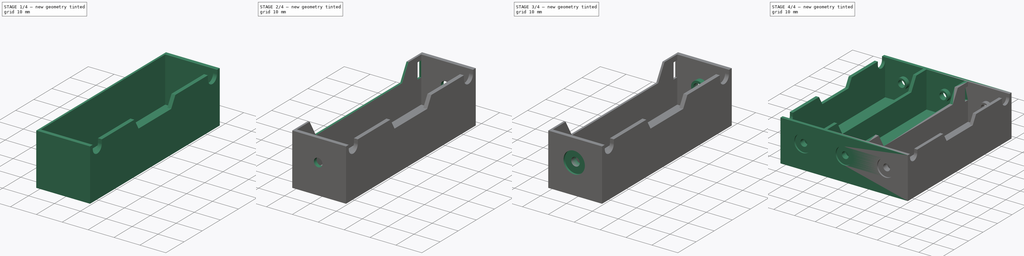
[diagram: build sequence overview — one tinted view per stage of 4, left to right]
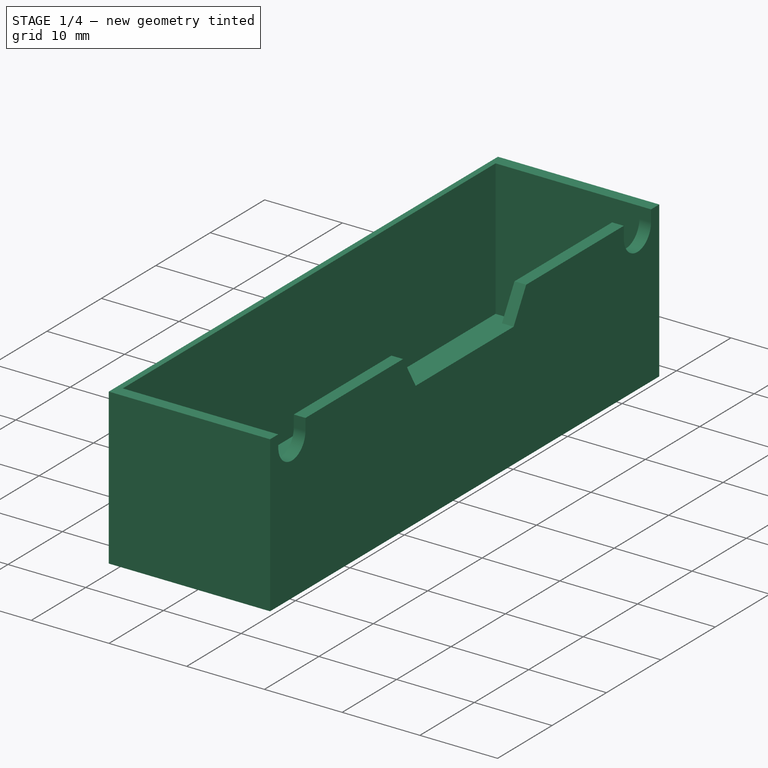
[diagram: stage 1 of 4 — iso view after this stage's code; geometry added in this stage tinted green]
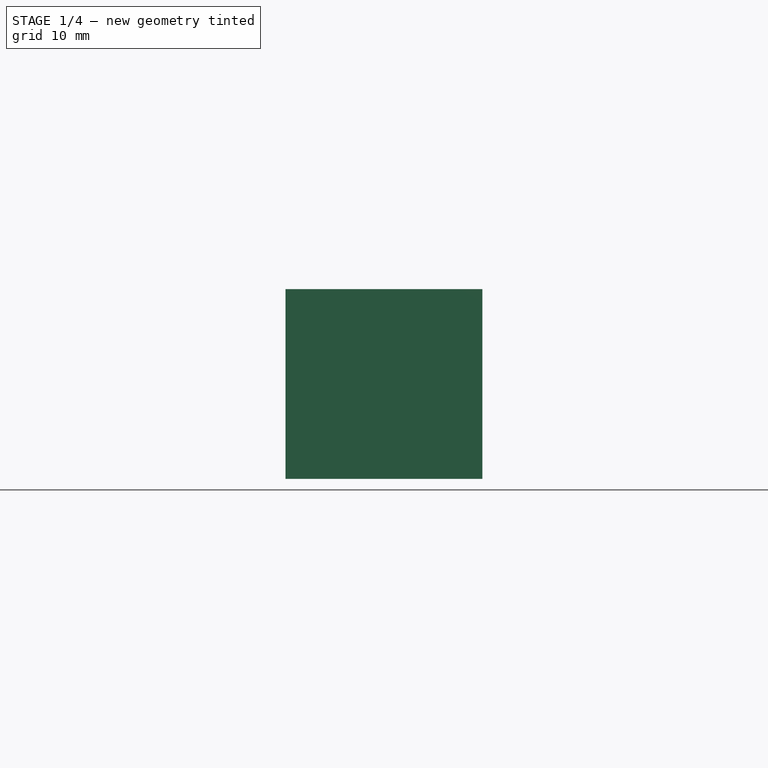
[diagram: stage 1 of 4 — front view after this stage's code; geometry added in this stage tinted green]
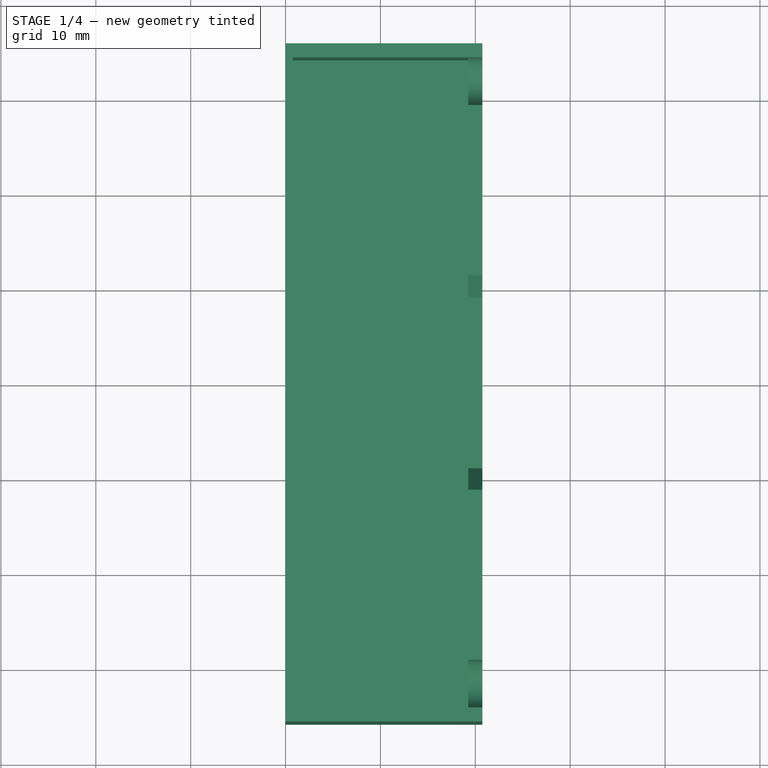
[diagram: stage 1 of 4 — top view after this stage's code; geometry added in this stage tinted green]
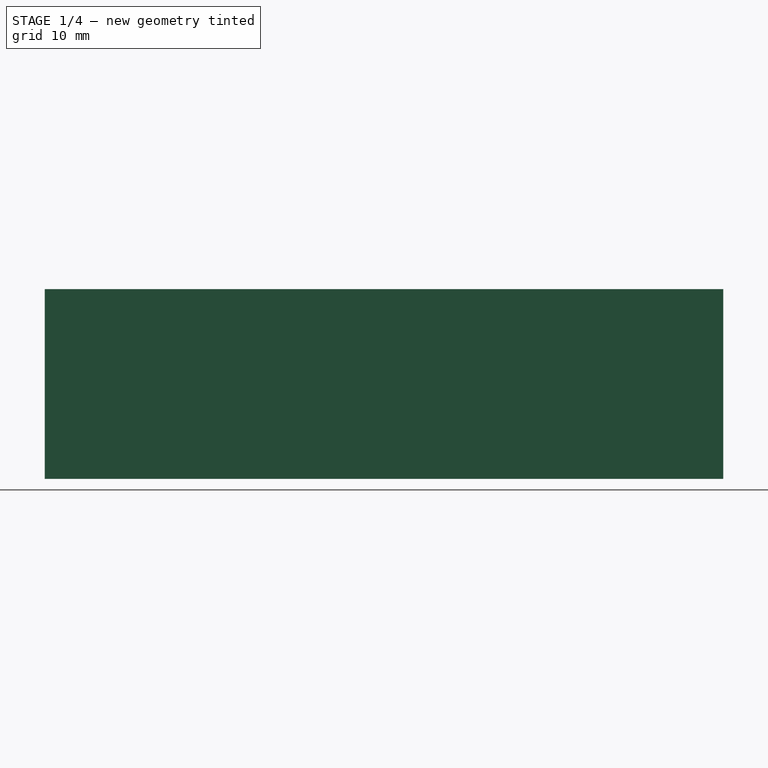
[diagram: stage 1 of 4 — right view after this stage's code; geometry added in this stage tinted green]
FCSTD DOCUMENT  (FreeCAD 1.0R39109 (Git))
Label: batteryholderx3
License: All rights reserved
LicenseURL: http://en.wikipedia.org/wiki/All_rights_reserved
objects: Sketcher::SketchObject×13, PartDesign::Pocket×8, PartDesign::Pad×3, PartDesign::Mirrored×2, PartDesign::Plane×1, PartDesign::Body×1
note: 65 computed .brp shape members not serialized (recipe doc carries the construction recipe); baked Part::Feature solids carry a one-line shape summary decoded from their .brp

FEATURE [Sketcher::SketchObject] Sketch
  ArcFitTolerance = 1e-06
  AttachmentSupport = -> [XY_Plane]
  FullyConstrained = true
  MakeInternals = false
  MapMode = 5
  sketch-geometry (4):
    g0: LineSegment StartX=0 StartY=35.75 StartZ=0 EndX=0 EndY=-35.75 EndZ=0
    g1: LineSegment StartX=0 StartY=-35.75 StartZ=0 EndX=20.75 EndY=-35.75 EndZ=0
    g2: LineSegment StartX=20.75 StartY=-35.75 StartZ=0 EndX=20.75 EndY=35.75 EndZ=0
    g3: LineSegment StartX=20.75 StartY=35.75 StartZ=0 EndX=0 EndY=35.75 EndZ=0
  constraints (11):
    c: Coincident(g0,g1)
    c: Coincident(g1,g2)
    c: Coincident(g2,g3)
    c: Coincident(g3,g0)
    c: Vertical(g0)
    c: Horizontal(g1)
    c: Horizontal(g3)
    c: PointOnObject(g0,g-2)
    c: DistanceY(g2,g2) = 71.5
    c: DistanceX(g3,g3) = 20.75
    c: Symmetric(g2,g1,g-1)
FEATURE [PartDesign::Pad] Pad  label="BaseBoxPad"
  Direction = (0,0,1)
  Length = 20
  Length2 = 10
  Profile = -> Sketch
  ReferenceAxis = -> Sketch [N_Axis]
  Refine = true
  Suppressed = false
  Type = 0
FEATURE [Sketcher::SketchObject] Sketch001
  ArcFitTolerance = 1e-06
  AttachmentSupport = -> [Pad]
  ExternalGeometry = -> [Pad]
  FullyConstrained = true
  MakeInternals = false
  MapMode = 5
  Placement = pos=(0,0,20) rot=(0,0,1;0rad)
  sketch-geometry (4):
    g0: LineSegment StartX=0.75 StartY=34.25 StartZ=0 EndX=0.75 EndY=-34.25 EndZ=0
    g1: LineSegment StartX=0.75 StartY=-34.25 StartZ=0 EndX=19.25 EndY=-34.25 EndZ=0
    g2: LineSegment StartX=19.25 StartY=-34.25 StartZ=0 EndX=19.25 EndY=34.25 EndZ=0
    g3: LineSegment StartX=19.25 StartY=34.25 StartZ=0 EndX=0.75 EndY=34.25 EndZ=0
  constraints (12):
    c: Coincident(g0,g1)
    c: Coincident(g1,g2)
    c: Coincident(g2,g3)
    c: Coincident(g3,g0)
    c: Vertical(g0)
    c: Horizontal(g1)
    c: Horizontal(g3)
    c: DistanceX(g0) = 0.75
    c: DistanceX(g1,g-3) = 1.5
    c: DistanceX(g1,g1) = 18.5
    c: DistanceY(g2,g-3) = 1.5
    c: Symmetric(g2,g1,g-1)
FEATURE [PartDesign::Pocket] Pocket  label="BatteryPocket"
  BaseFeature = -> Pad
  Direction = (0,0,-1)
  Length = 17.5
  Length2 = 5
  Profile = -> Sketch001
  ReferenceAxis = -> Sketch001 [N_Axis]
  Refine = true
  Suppressed = false
  Type = 0
FEATURE [Sketcher::SketchObject] Sketch002
  ArcFitTolerance = 1e-06
  AttachmentSupport = -> [Pocket]
  ExternalGeometry = -> [Pocket]
  FullyConstrained = false
  MakeInternals = false
  MapMode = 5
  Placement = pos=(20.75,0,0) rot=(0.57735,0.57735,0.57735;2.0944rad)
  sketch-geometry (14):
    g0: ArcOfCircle CenterX=-31.75 CenterY=18.5 CenterZ=0 NormalX=0 NormalY=0 NormalZ=1 AngleXU=0 Radius=2.5 StartAngle=3.14159 EndAngle=6.28319
    g1: LineSegment StartX=-34.25 StartY=18.5 StartZ=0 EndX=-34.25 EndY=20 EndZ=0
    g2: LineSegment StartX=-29.25 StartY=18.5 StartZ=0 EndX=-29.25 EndY=20 EndZ=0
    g3: LineSegment StartX=-11.3094 StartY=20 StartZ=0 EndX=-9 EndY=16 EndZ=0
    g4: LineSegment StartX=-9 StartY=16 StartZ=0 EndX=9 EndY=16 EndZ=0
    g5: LineSegment StartX=9 StartY=16 StartZ=0 EndX=11.3094 EndY=20 EndZ=0
    g6: LineSegment StartX=11.3094 StartY=20 StartZ=0 EndX=-11.3094 EndY=20 EndZ=0
    g7: LineSegment StartX=-29.25 StartY=20 StartZ=0 EndX=-34.25 EndY=20 EndZ=0
    g8: GeomPoint X=-31.75 Y=16 Z=0
    g9: ArcOfCircle CenterX=31.75 CenterY=18.5 CenterZ=0 NormalX=0 NormalY=0 NormalZ=1 AngleXU=0 Radius=2.5 StartAngle=3.14159 EndAngle=6.28319
    g10: LineSegment StartX=34.25 StartY=18.5 StartZ=0 EndX=34.25 EndY=20 EndZ=0
    g11: LineSegment StartX=29.25 StartY=18.5 StartZ=0 EndX=29.25 EndY=20 EndZ=0
    g12: LineSegment StartX=29.25 StartY=20 StartZ=0 EndX=34.25 EndY=20 EndZ=0
    g13: GeomPoint X=31.75 Y=16 Z=0
  constraints (29):
    c: Coincident(g1,g-5)
    c: PointOnObject(g2,g-3)
    c: Vertical(g2)
    c: PointOnObject(g3,g-3)
    c: Coincident(g4,g3)
    c: Coincident(g5,g4)
    c: Coincident(g6,g5)
    c: Coincident(g6,g3)
    c: Coincident(g7,g2)
    c: Coincident(g7,g1)
    c: DistanceX(g7,g7) = 5
    c: Vertical(g1)
    c: Tangent(g1,g0) = 1.5708
    c: Tangent(g2,g0) = -1.5708
    c: PointOnObject(g8,g0)
    c: Vertical(g8,g0)
    c: DistanceY(g8,g1) = 4
    c: Horizontal(g3,g8)
    c: Angle(g4,g3) = 2.0944
    c: Symmetric(g5,g3,g-2)
    c: Symmetric(g4,g3,g-2)
    c: DistanceX(g4,g4) = 18
    c: Vertical(g11)
    c: Coincident(g12,g11)
    c: Coincident(g12,g10)
    c: Vertical(g10)
    c: Tangent(g10,g9) = -1.5708
    c: Tangent(g11,g9) = 1.5708
    c: PointOnObject(g13,g9)
FEATURE [PartDesign::Pocket] Pocket001  label="ExternalPocket"
  BaseFeature = -> Pocket
  Direction = (-1,0,0)
  Length = 5
  Length2 = 5
  Profile = -> Sketch002
  ReferenceAxis = -> Sketch002 [N_Axis]
  Refine = true
  Suppressed = false
  Type = 2
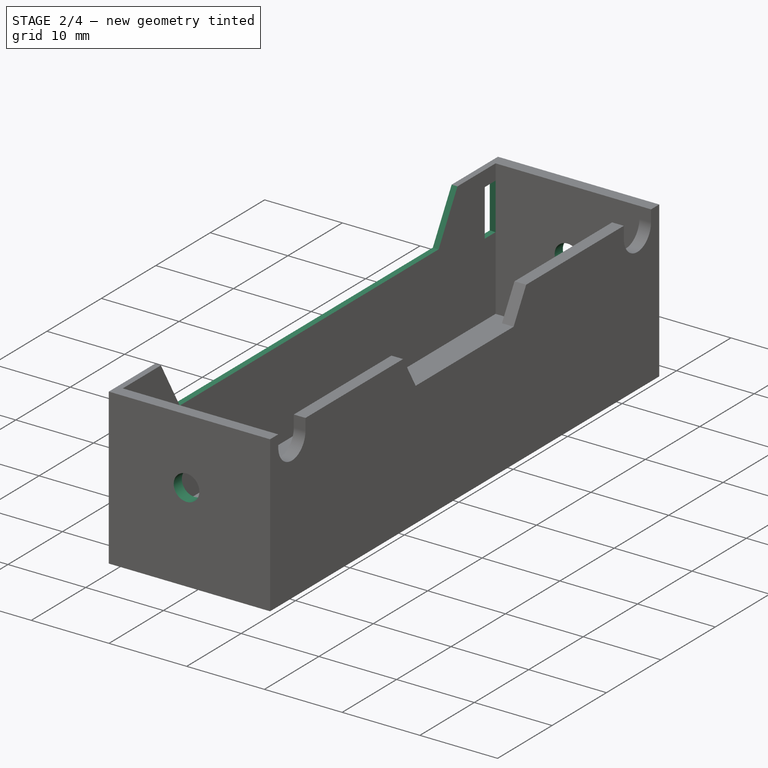
[diagram: stage 2 of 4 — iso view after this stage's code; geometry added in this stage tinted green]
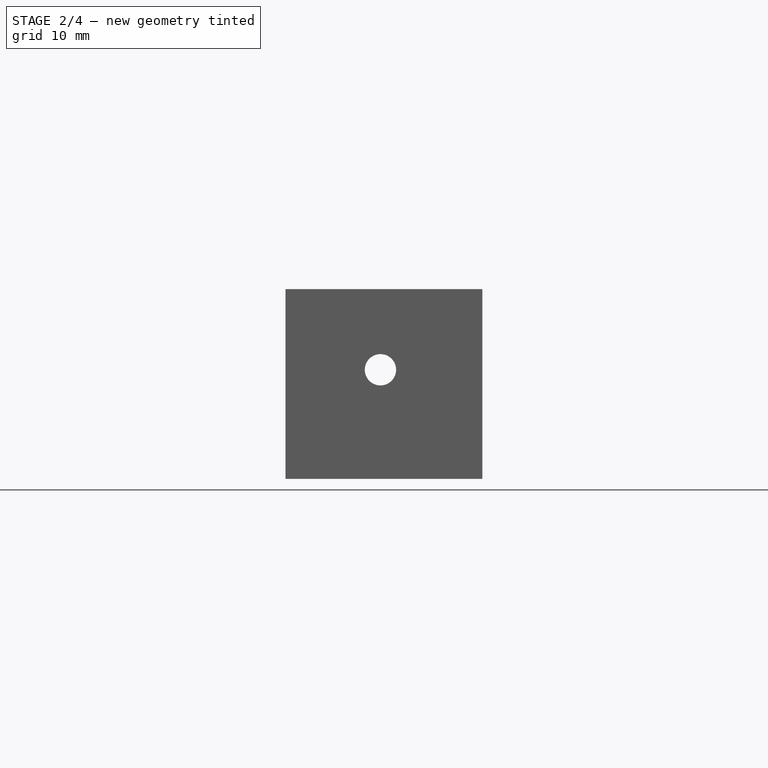
[diagram: stage 2 of 4 — front view after this stage's code; geometry added in this stage tinted green]
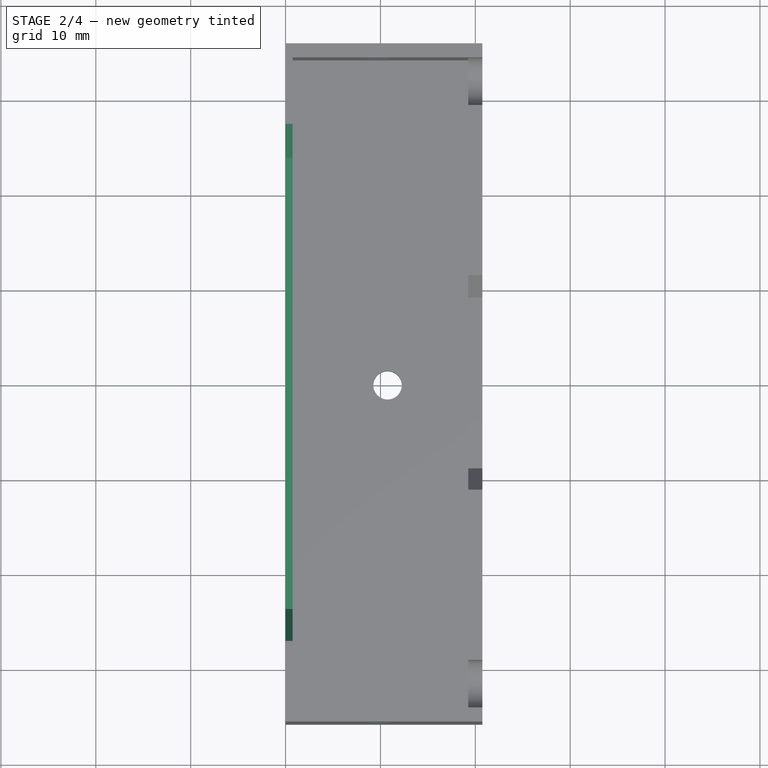
[diagram: stage 2 of 4 — top view after this stage's code; geometry added in this stage tinted green]
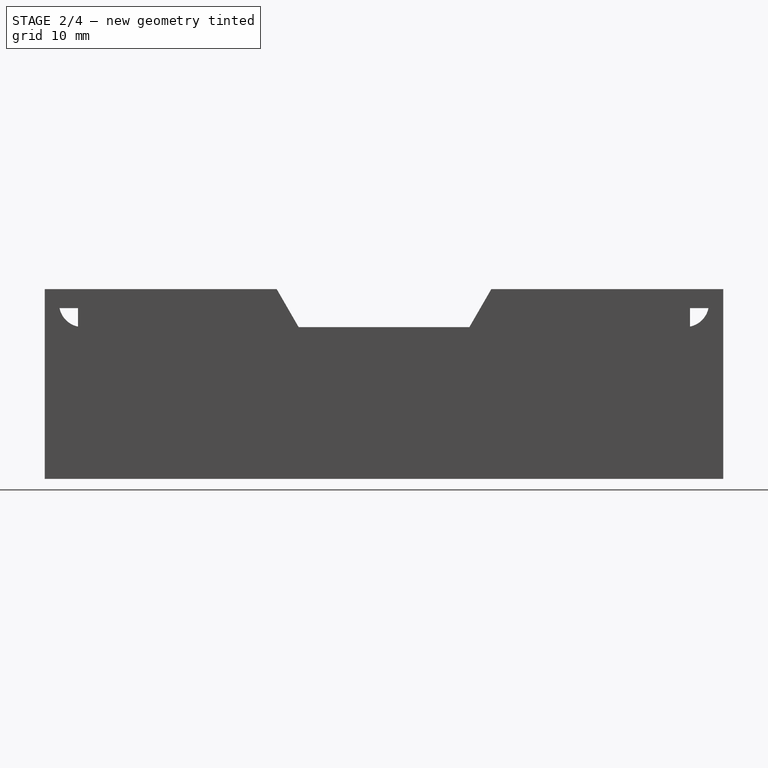
[diagram: stage 2 of 4 — right view after this stage's code; geometry added in this stage tinted green]
FEATURE [Sketcher::SketchObject] Sketch003
  ArcFitTolerance = 1e-06
  AttachmentSupport = -> [Pocket001]
  ExternalGeometry = -> [Pocket001]
  FullyConstrained = true
  MakeInternals = false
  MapMode = 5
  Placement = pos=(0.75,0,0) rot=(0.57735,0.57735,0.57735;2.0944rad)
  sketch-geometry (12):
    g0: LineSegment StartX=-27.25 StartY=20 StartZ=0 EndX=-23.7859 EndY=14 EndZ=0
    g1: LineSegment StartX=-23.7859 StartY=14 StartZ=0 EndX=23.7859 EndY=14 EndZ=0
    g2: LineSegment StartX=23.7859 StartY=14 StartZ=0 EndX=27.25 EndY=20 EndZ=0
    g3: LineSegment StartX=27.25 StartY=20 StartZ=0 EndX=-27.25 EndY=20 EndZ=0
    g4: LineSegment StartX=-34.25 StartY=18 StartZ=0 EndX=-34.25 EndY=12 EndZ=0
    g5: LineSegment StartX=-34.25 StartY=12 StartZ=0 EndX=-32.25 EndY=12 EndZ=0
    g6: LineSegment StartX=-32.25 StartY=12 StartZ=0 EndX=-32.25 EndY=18 EndZ=0
    g7: LineSegment StartX=-32.25 StartY=18 StartZ=0 EndX=-34.25 EndY=18 EndZ=0
    g8: LineSegment StartX=34.25 StartY=18 StartZ=0 EndX=32.25 EndY=18 EndZ=0
    g9: LineSegment StartX=32.25 StartY=18 StartZ=0 EndX=32.25 EndY=12 EndZ=0
    g10: LineSegment StartX=32.25 StartY=12 StartZ=0 EndX=34.25 EndY=12 EndZ=0
    g11: LineSegment StartX=34.25 StartY=12 StartZ=0 EndX=34.25 EndY=18 EndZ=0
  constraints (34):
    c: Coincident(g0,g1)
    c: Coincident(g1,g2)
    c: Coincident(g2,g3)
    c: Coincident(g3,g0)
    c: DistanceY(g-4,g1) = 11.5
    c: PointOnObject(g2,g-3)
    c: DistanceX(g2,g-3) = 7
    c: Angle(g2,g1) = 2.0944
    c: Symmetric(g0,g2,g-2)
    c: Symmetric(g0,g1,g-2)
    c: Coincident(g4,g5)
    c: Coincident(g5,g6)
    c: Coincident(g6,g7)
    c: Coincident(g7,g4)
    c: Vertical(g4)
    c: Vertical(g6)
    c: Horizontal(g5)
    c: Horizontal(g7)
    c: PointOnObject(g4,g-6)
    c: Coincident(g8,g9)
    c: Coincident(g9,g10)
    c: Coincident(g10,g11)
    c: Coincident(g11,g8)
    c: Horizontal(g8)
    c: Horizontal(g10)
    c: Vertical(g9)
    c: Vertical(g11)
    c: PointOnObject(g8,g-5)
    c: Horizontal(g5,g9)
    c: Horizontal(g8,g6)
    c: Equal(g7,g8)
    c: DistanceX(g8,g8) = 2
    c: DistanceY(g9,g9) = 6
    c: DistanceY(g8,g-5) = 2
FEATURE [PartDesign::Pocket] Pocket002  label="InternalPocket"
  BaseFeature = -> Pocket001
  Direction = (-1,0,0)
  Length = 5
  Length2 = 5
  Profile = -> Sketch003
  ReferenceAxis = -> Sketch003 [N_Axis]
  Refine = true
  Suppressed = false
  Type = 2
FEATURE [Sketcher::SketchObject] Sketch004
  ArcFitTolerance = 1e-06
  AttachmentSupport = -> [Pocket002]
  ExternalGeometry = -> [Pocket002]
  FullyConstrained = true
  MakeInternals = false
  MapMode = 5
  Placement = pos=(0,0,0) rot=(1,0,0;3.14159rad)
  sketch-geometry (1):
    g0: Circle CenterX=10.75 CenterY=0 CenterZ=0 NormalX=0 NormalY=0 NormalZ=1 AngleXU=0 Radius=1.5
  constraints (3):
    c: PointOnObject(g0,g-1)
    c: Radius(g0) = 1.5
    c: DistanceX(g0,g-3) = 10
FEATURE [PartDesign::Pocket] Pocket003  label="ScrewPocket"
  BaseFeature = -> Pocket002
  Direction = (0,0,1)
  Length = 5
  Length2 = 5
  Profile = -> Sketch004
  ReferenceAxis = -> Sketch004 [N_Axis]
  Refine = true
  Suppressed = false
  Type = 2
FEATURE [Sketcher::SketchObject] Sketch005
  ArcFitTolerance = 1e-06
  AttachmentSupport = -> [Pocket003]
  ExternalGeometry = -> [Pocket003]
  FullyConstrained = true
  MakeInternals = false
  MapMode = 5
  Placement = pos=(0,-35.75,0) rot=(1,0,0;1.5708rad)
  sketch-geometry (2):
    g0: Circle CenterX=10 CenterY=11.5 CenterZ=0 NormalX=0 NormalY=0 NormalZ=1 AngleXU=0 Radius=1.65
    g1: GeomPoint X=10 Y=2.5 Z=0
  constraints (4):
    c: Radius(g0) = 1.65
    c: DistanceY(g-3,g0) = 9
    c: Symmetric(g-3,g-3,g1)
    c: Vertical(g0,g1)
FEATURE [PartDesign::Pocket] Pocket004  label="ConnectionPocket"
  BaseFeature = -> Pocket003
  Direction = (0,1,-2e-16)
  Length = 5
  Length2 = 5
  Profile = -> Sketch005
  ReferenceAxis = -> Sketch005 [N_Axis]
  Refine = true
  Suppressed = false
  Type = 1
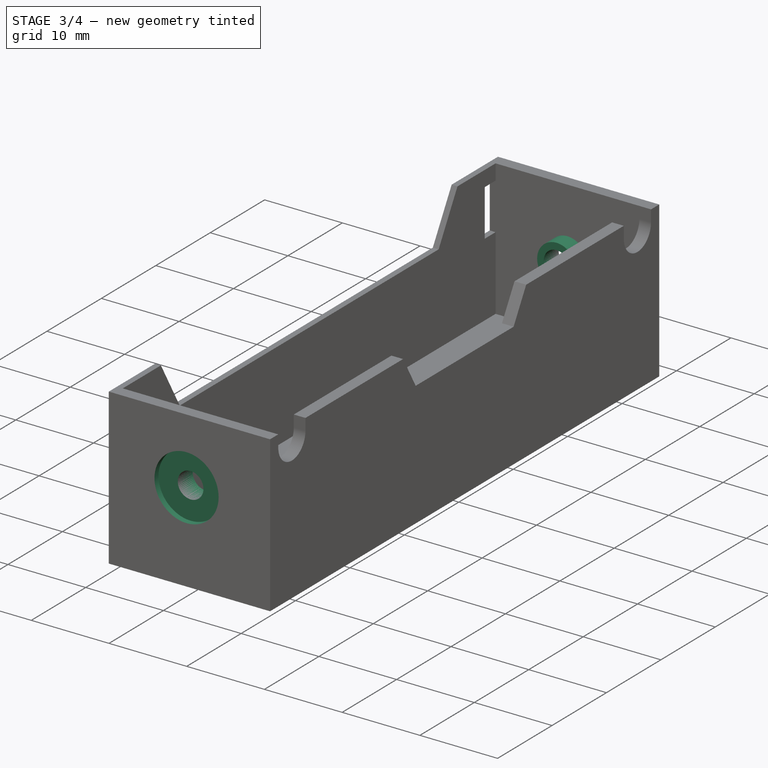
[diagram: stage 3 of 4 — iso view after this stage's code; geometry added in this stage tinted green]
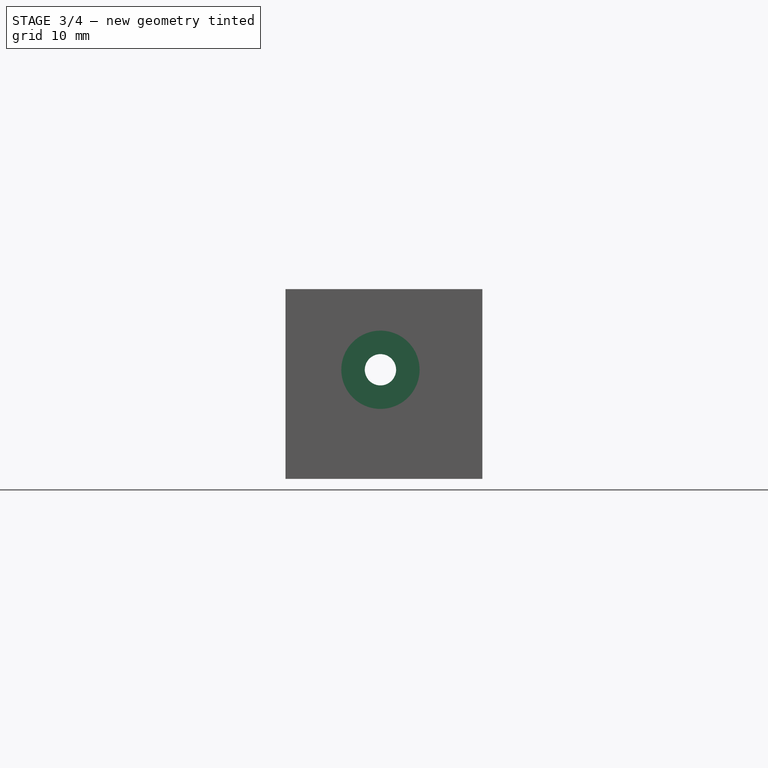
[diagram: stage 3 of 4 — front view after this stage's code; geometry added in this stage tinted green]
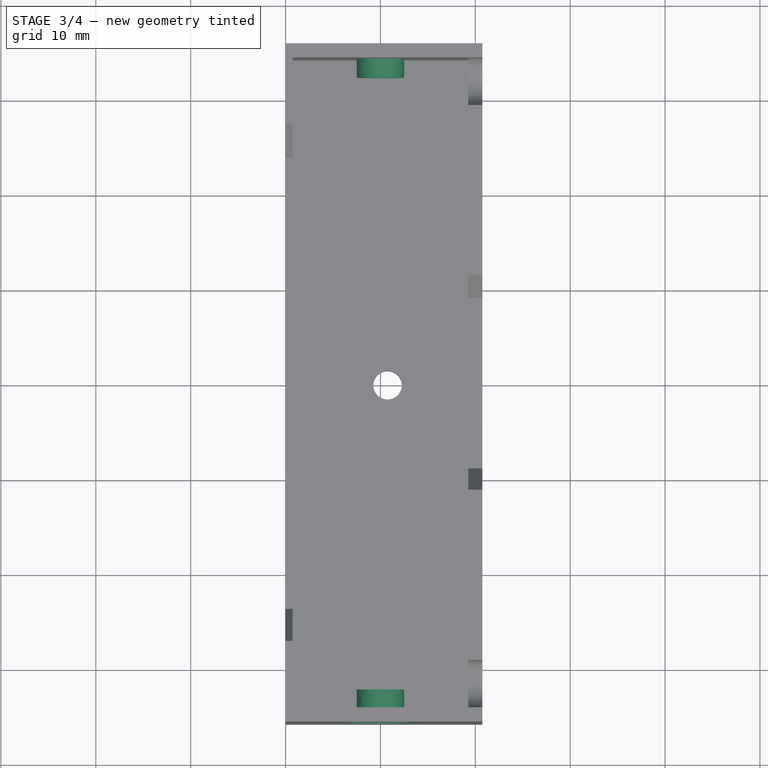
[diagram: stage 3 of 4 — top view after this stage's code; geometry added in this stage tinted green]
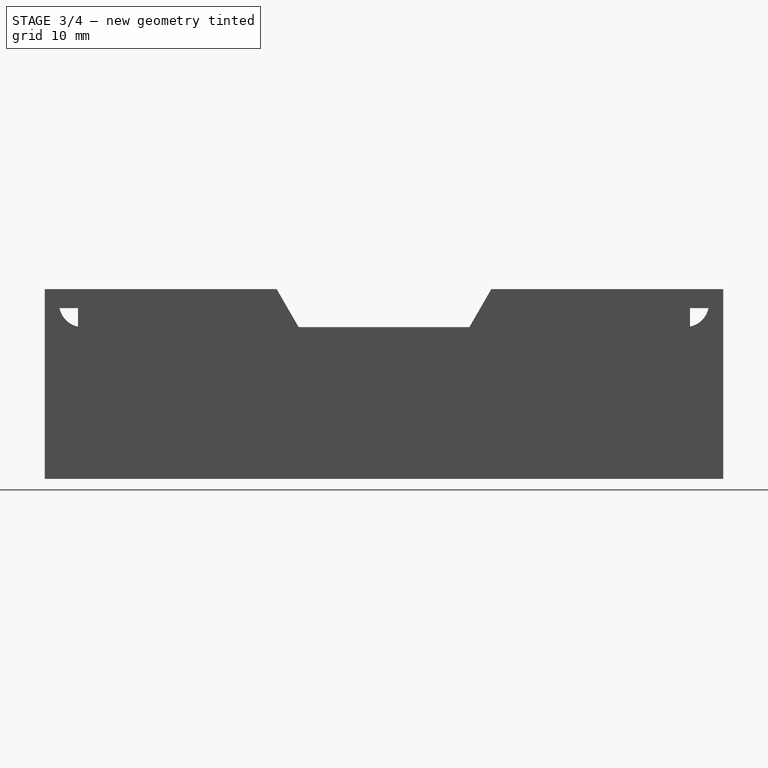
[diagram: stage 3 of 4 — right view after this stage's code; geometry added in this stage tinted green]
FEATURE [Sketcher::SketchObject] Sketch006
  ArcFitTolerance = 1e-06
  AttachmentSupport = -> [Pocket004]
  ExternalGeometry = -> [Pocket004]
  FullyConstrained = true
  MakeInternals = false
  MapMode = 5
  Placement = pos=(0,-35.75,0) rot=(1,0,0;1.5708rad)
  sketch-geometry (1):
    g0: Circle CenterX=10 CenterY=11.5 CenterZ=0 NormalX=0 NormalY=0 NormalZ=1 AngleXU=0 Radius=4.125
  constraints (2):
    c: Coincident(g0,g-3)
    c: Radius(g0) = 4.125
FEATURE [PartDesign::Pocket] Pocket005  label="Connection2Pocket"
  BaseFeature = -> Pocket004
  Direction = (0,1,-2e-16)
  Length = 0.75
  Length2 = 5
  Profile = -> Sketch006
  ReferenceAxis = -> Sketch006 [N_Axis]
  Refine = true
  Suppressed = false
  Type = 0
FEATURE [Sketcher::SketchObject] Sketch007
  ArcFitTolerance = 1e-06
  AttachmentSupport = -> [Pocket005]
  ExternalGeometry = -> [Pocket005]
  FullyConstrained = true
  MakeInternals = false
  MapMode = 5
  Placement = pos=(0,35.75,0) rot=(0,0.707107,0.707107;3.14159rad)
  sketch-geometry (1):
    g0: Circle CenterX=-10 CenterY=11.5 CenterZ=0 NormalX=0 NormalY=0 NormalZ=1 AngleXU=0 Radius=4.125
  constraints (2):
    c: Coincident(g0,g-3)
    c: Equal(g0,g-3)
FEATURE [PartDesign::Pocket] Pocket006  label="Connection3Pocktet"
  BaseFeature = -> Pocket005
  Direction = (0,-1,2e-16)
  Length = 0.75
  Length2 = 5
  Profile = -> Sketch007
  ReferenceAxis = -> Sketch007 [N_Axis]
  Refine = true
  Suppressed = false
  Type = 0
FEATURE [Sketcher::SketchObject] Sketch008
  ArcFitTolerance = 1e-06
  AttachmentSupport = -> [Pocket006]
  ExternalGeometry = -> [Pocket006]
  FullyConstrained = true
  MakeInternals = false
  MapMode = 5
  Placement = pos=(0,34.25,0) rot=(1,0,0;1.5708rad)
  sketch-geometry (2):
    g0: Circle CenterX=10 CenterY=11.5 CenterZ=0 NormalX=0 NormalY=0 NormalZ=1 AngleXU=0 Radius=2.5
    g1: Circle CenterX=10 CenterY=11.5 CenterZ=0 NormalX=0 NormalY=0 NormalZ=1 AngleXU=0 Radius=1.65
  constraints (4):
    c: Coincident(g0,g-3)
    c: Coincident(g1,g0)
    c: Equal(g-3,g1)
    c: Radius(g0) = 2.5
FEATURE [PartDesign::Pad] Pad001  label="ConnectionPad"
  BaseFeature = -> Pocket006
  Direction = (0,-1,2e-16)
  Length = 2
  Length2 = 10
  Profile = -> Sketch008
  ReferenceAxis = -> Sketch008 [N_Axis]
  Refine = true
  Suppressed = false
  Type = 0
FEATURE [Sketcher::SketchObject] Sketch009
  ArcFitTolerance = 1e-06
  AttachmentSupport = -> [Pad001]
  ExternalGeometry = -> [Pad001]
  FullyConstrained = true
  MakeInternals = false
  MapMode = 5
  Placement = pos=(0,-34.25,0) rot=(0,0.707107,0.707107;3.14159rad)
  sketch-geometry (2):
    g0: Circle CenterX=-10 CenterY=11.5 CenterZ=0 NormalX=0 NormalY=0 NormalZ=1 AngleXU=0 Radius=2.5
    g1: Circle CenterX=-10 CenterY=11.5 CenterZ=0 NormalX=0 NormalY=0 NormalZ=1 AngleXU=0 Radius=1.65
  constraints (4):
    c: Coincident(g0,g-4)
    c: Coincident(g1,g0)
    c: Equal(g1,g-4)
    c: Equal(g-3,g0)
FEATURE [PartDesign::Pad] Pad002  label="Connection2Pad"
  BaseFeature = -> Pad001
  Direction = (0,1,-2e-16)
  Length = 2
  Length2 = 10
  Profile = -> Sketch009
  ReferenceAxis = -> Sketch009 [N_Axis]
  Refine = true
  Suppressed = false
  Type = 0
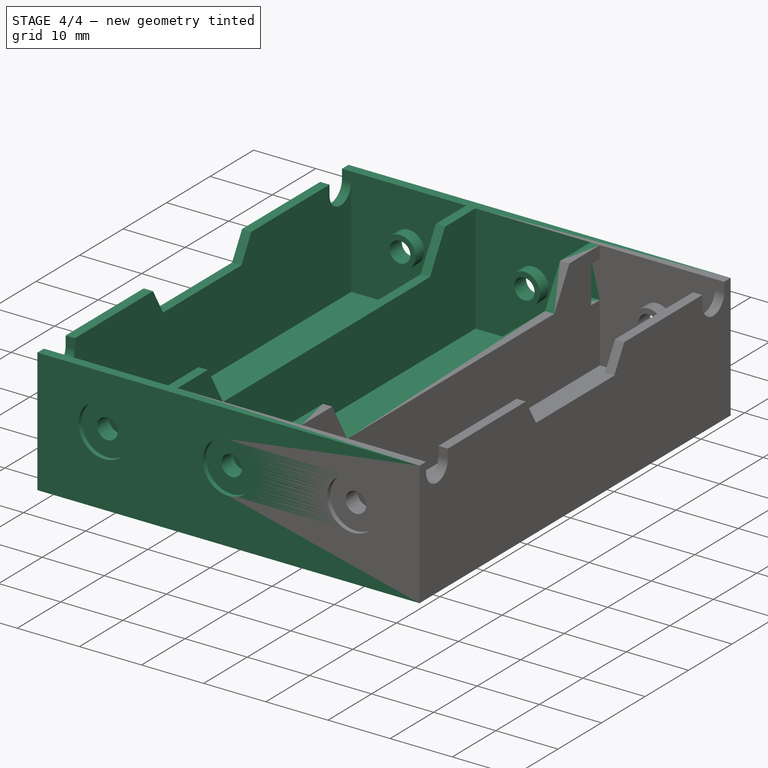
[diagram: stage 4 of 4 — iso view after this stage's code; geometry added in this stage tinted green]
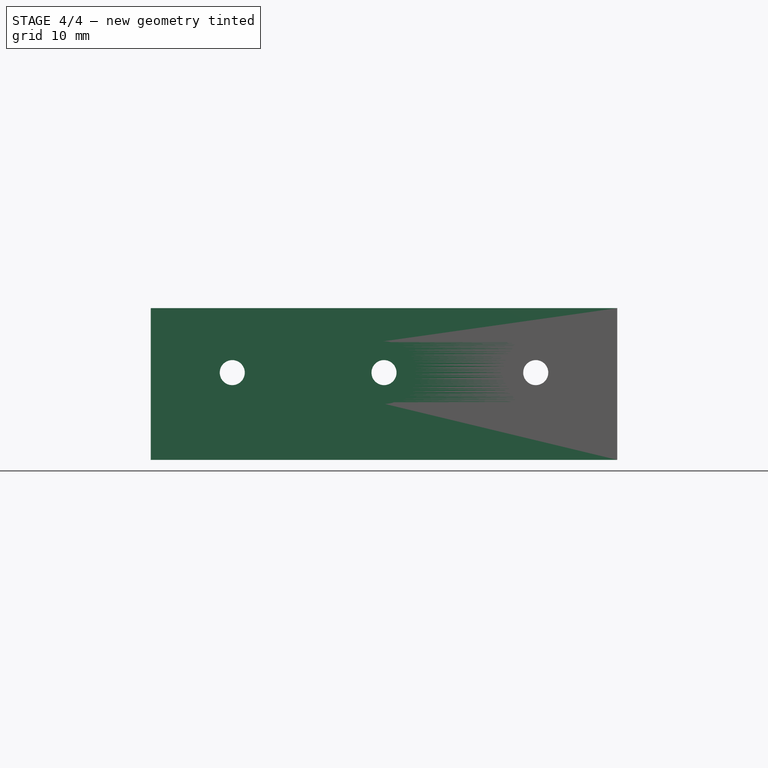
[diagram: stage 4 of 4 — front view after this stage's code; geometry added in this stage tinted green]
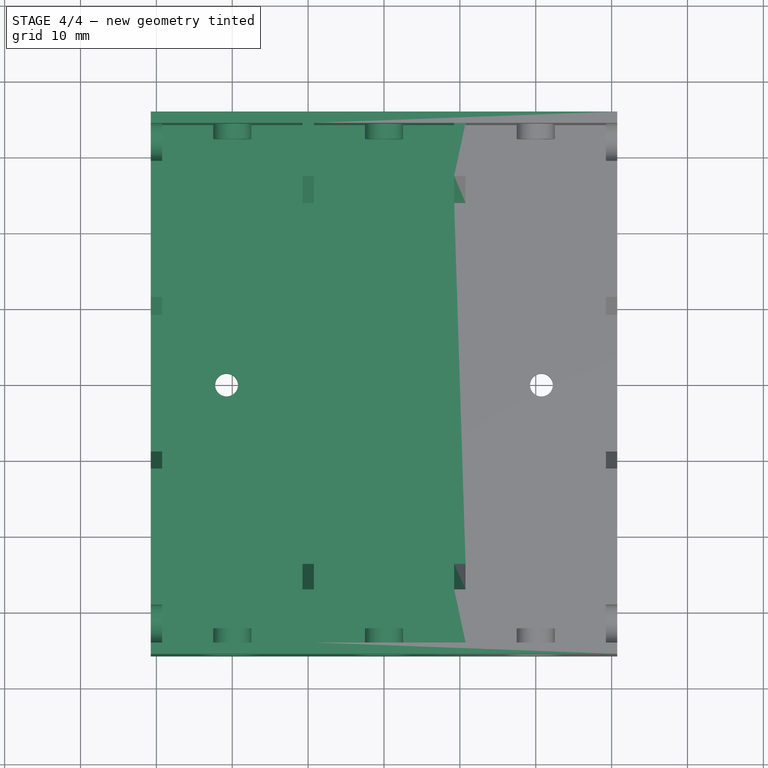
[diagram: stage 4 of 4 — top view after this stage's code; geometry added in this stage tinted green]
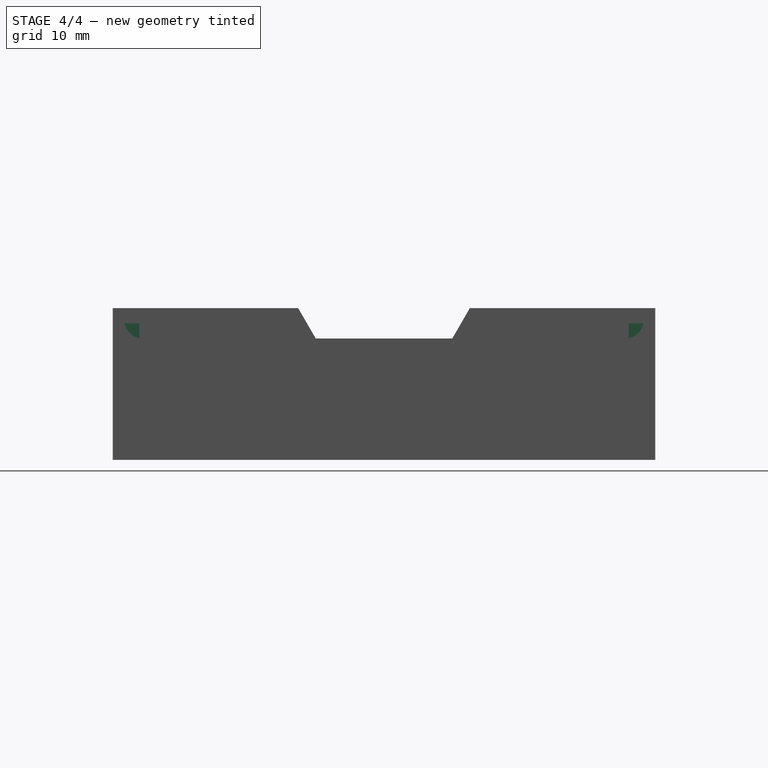
[diagram: stage 4 of 4 — right view after this stage's code; geometry added in this stage tinted green]
FEATURE [PartDesign::Mirrored] Mirrored  label="MirrorForMiddle"
  BaseFeature = -> Pad002
  MirrorPlane = -> Sketch [V_Axis]
  Originals = -> [Pad,Pocket,Pocket002,Pocket004,Pocket005,Pocket006,Pad001,Pad002]
  Refine = true
  Suppressed = false
  TransformMode = 0
FEATURE [Sketcher::SketchObject] Sketch010
  ArcFitTolerance = 1e-06
  AttachmentSupport = -> [Mirrored]
  ExternalGeometry = -> [Mirrored]
  FullyConstrained = true
  MakeInternals = false
  MapMode = 5
  Placement = pos=(0,0,20) rot=(0,0,1;0rad)
  sketch-geometry (3):
    g0: LineSegment StartX=-19.25 StartY=-34.25 StartZ=0 EndX=-0.75 EndY=-34.25 EndZ=0
    g1: GeomPoint X=-10 Y=-34.25 Z=0
    g2: LineSegment StartX=-10 StartY=-34.25 StartZ=0 EndX=-10 EndY=0 EndZ=0
  constraints (6):
    c: Coincident(g0,g-4)
    c: Coincident(g0,g-4)
    c: Symmetric(g0,g0,g1)
    c: Coincident(g2,g1)
    c: PointOnObject(g2,g-1)
    c: Vertical(g2)
FEATURE [PartDesign::Plane] DatumPlane  label="AdditionalSimmetry"
  AttachmentOffset = pos=(0,0,-10) rot=(0,0,1;0rad)
  AttachmentSupport = -> [YZ_Plane]
  Length = 83.4583
  MapMode = 5
  Placement = pos=(-10,0,0) rot=(0.57735,0.57735,0.57735;2.0944rad)
  ResizeMode = 0
  Width = 61.9583
FEATURE [PartDesign::Mirrored] Mirrored001  label="MirrorForThird"
  BaseFeature = -> Mirrored
  MirrorPlane = -> DatumPlane
  Originals = -> [Pad,Pocket,Pocket001,Pocket002,Pocket003,Pocket004,Pocket005,Pocket006,Pad001,Pad002]
  Refine = true
  Suppressed = false
  TransformMode = 0
FEATURE [Sketcher::SketchObject] Sketch011
  ArcFitTolerance = 1e-06
  AttachmentSupport = -> [Mirrored001]
  ExternalGeometry = -> [Mirrored001]
  FullyConstrained = true
  MakeInternals = false
  MapMode = 5
  Placement = pos=(-20,0,0) rot=(0.57735,-0.57735,-0.57735;2.0944rad)
  sketch-geometry (4):
    g0: LineSegment StartX=-27.25 StartY=20 StartZ=0 EndX=-23.7859 EndY=14 EndZ=0
    g1: LineSegment StartX=-23.7859 StartY=14 StartZ=0 EndX=23.7859 EndY=14 EndZ=0
    g2: LineSegment StartX=23.7859 StartY=14 StartZ=0 EndX=27.25 EndY=20 EndZ=0
    g3: LineSegment StartX=27.25 StartY=20 StartZ=0 EndX=-27.25 EndY=20 EndZ=0
  constraints (8):
    c: Coincident(g-4,g0)
    c: Coincident(g0,g-4)
    c: Coincident(g0,g1)
    c: Coincident(g1,g-5)
    c: Coincident(g1,g2)
    c: Coincident(g2,g-5)
    c: Coincident(g2,g3)
    c: Coincident(g3,g0)
FEATURE [PartDesign::Pocket] Pocket007  label="FinalDetailPocket"
  BaseFeature = -> Mirrored001
  Direction = (1,0,0)
  Length = 5
  Length2 = 5
  Profile = -> Sketch011
  ReferenceAxis = -> Sketch011 [N_Axis]
  Refine = true
  Suppressed = false
  Type = 2
FEATURE [Sketcher::SketchObject] Sketch012  label="SizeRef"
  ArcFitTolerance = 1e-06
  AttachmentSupport = -> [XY_Plane]
  ExternalGeometry = -> [Pocket007]
  FullyConstrained = true
  MakeInternals = false
  MapMode = 5
  constraints (4):
    c: DistanceY(g-6,g-5) = 71.5
    c: DistanceX(g-5,g-5) = 61.5
    c: DistanceY(g-3,g-5) = 35.75
    c: DistanceX(g-3,g-5) = 10
FEATURE [PartDesign::Body] Body  label="BatteryHolderx3"
  AllowCompound = false
  Group = -> [Sketch,Pad,Sketch001,Pocket,Sketch002,Pocket001,Sketch003,Pocket002,Sketch004,Pocket003,Sketch005,Pocket004,Sketch006,Pocket005,Sketch007,Pocket006,Sketch008,Pad001,Sketch009,Pad002,Mirrored,Sketch010,DatumPlane,Mirrored001,Sketch011,Pocket007,Sketch012]
  Origin = -> Origin
  Tip = -> Pocket007
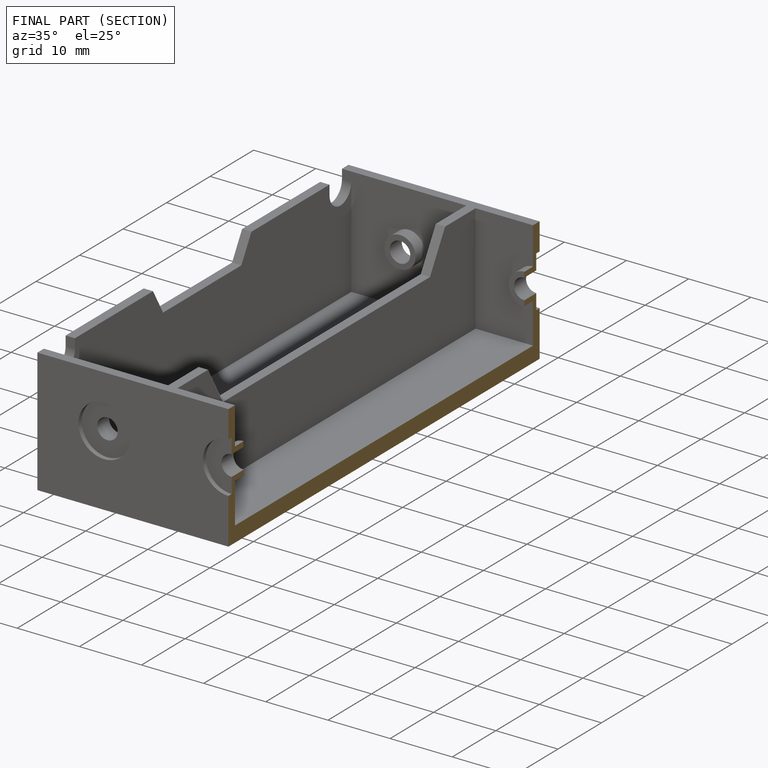
[diagram: finished part — half-section view (interior)]
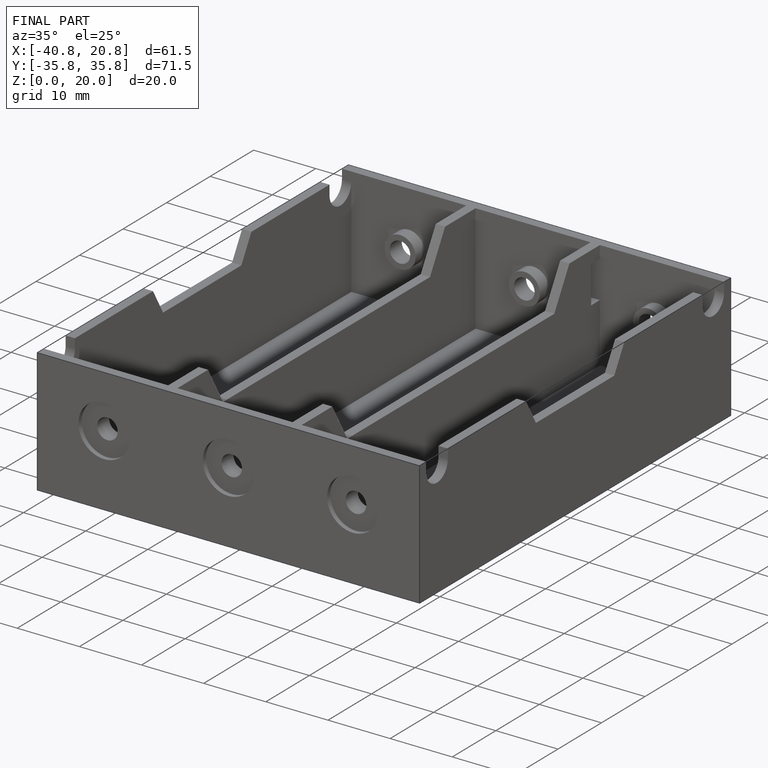
[diagram: finished part — iso view with bounding-box wireframe]
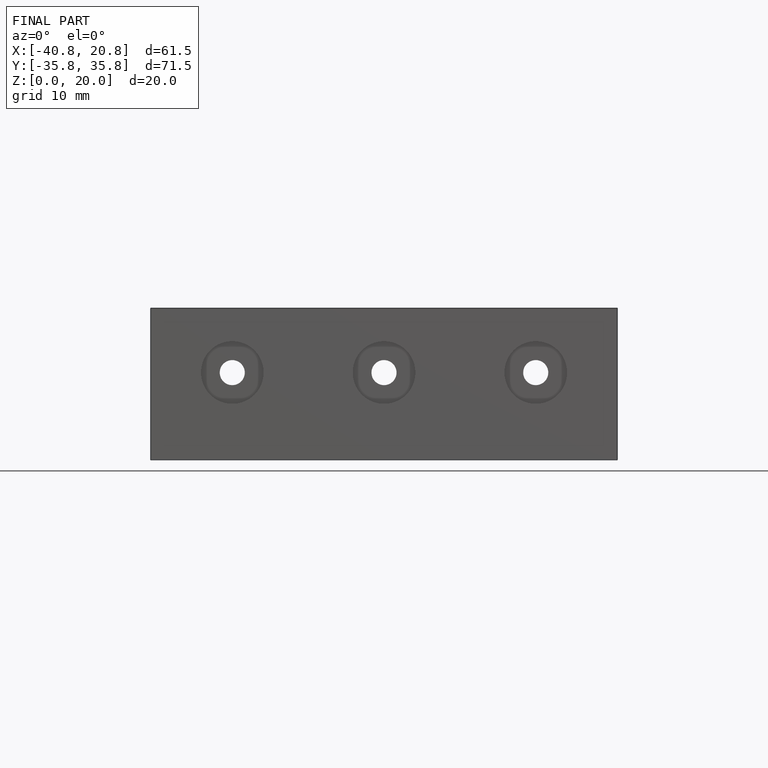
[diagram: finished part — front view with bounding-box wireframe]
